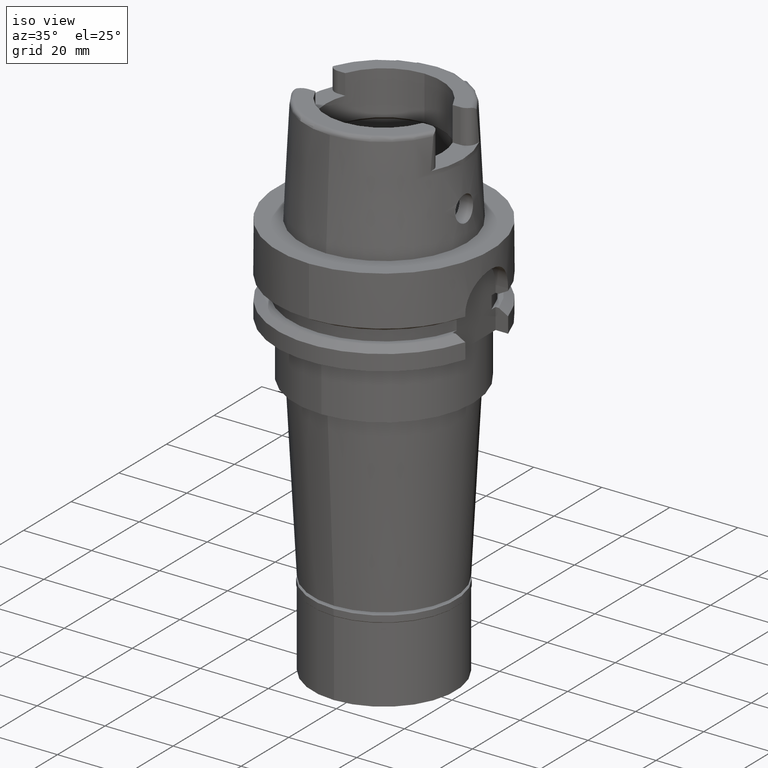
[diagram: clean part render]
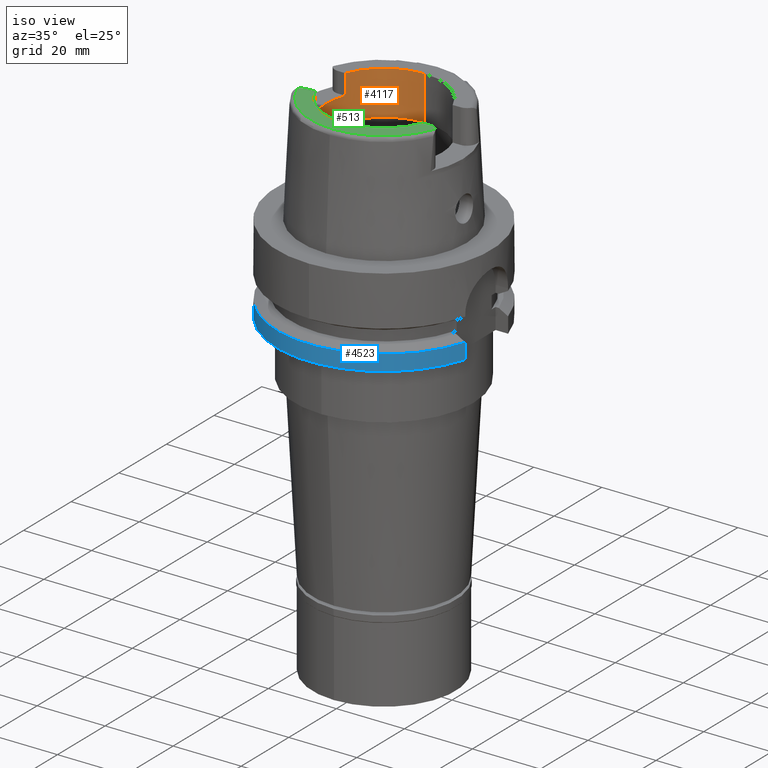
[diagram: same view with three faces highlighted in distinct colors, each labeled with its STEP entity id]
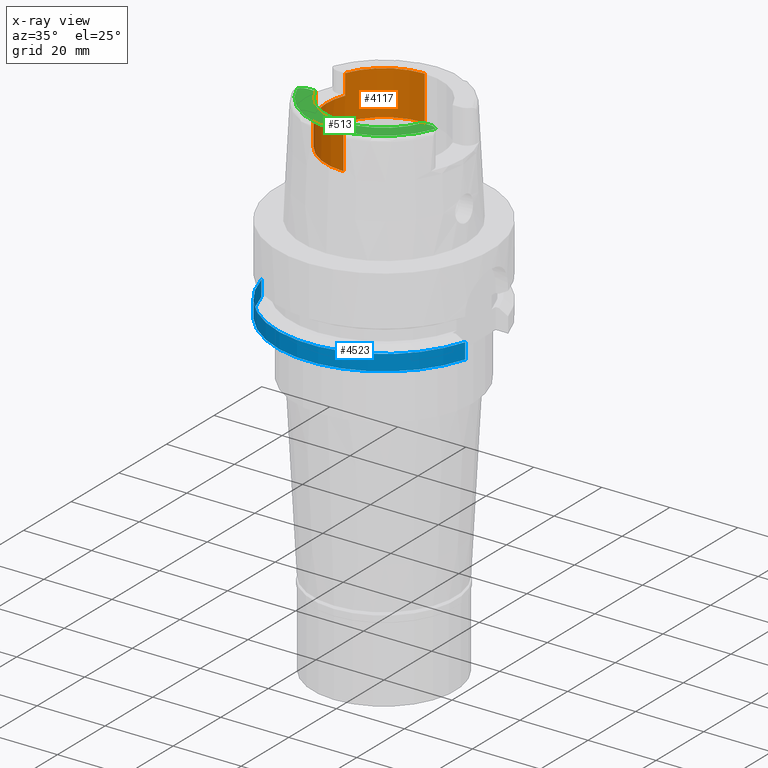
[diagram: x-ray of the same camera — body ghosted, the three highlighted faces saturated]
A machine part, iso view with three faces highlighted in distinct colors.
The next image is the same camera in x-ray (body ghosted, the three faces saturated) — at least one of them is partly hidden behind the body in this view.
Their STEP definitions:

[orange] entity #4117 — the highlighted cylindrical surface (partial cylindrical patch) has radius 17 mm, axis along (0, 0, 1).
#1 = ORIENTED_EDGE ( 'NONE', *, *, #1663, .F. ) ;
#38 = LINE ( 'NONE', #3398, #3618 ) ;
#169 = VERTEX_POINT ( 'NONE', #3105 ) ;
#191 = CARTESIAN_POINT ( 'NONE',  ( 0.0000000000000000000, -17.00000000000000000, 18.99602540378000270 ) ) ;
#219 = FACE_OUTER_BOUND ( 'NONE', #5103, .T. ) ;
#234 = ORIENTED_EDGE ( 'NONE', *, *, #3844, .F. ) ;
#294 = AXIS2_PLACEMENT_3D ( 'NONE', #1438, #3910, #5159 ) ;
#353 = VERTEX_POINT ( 'NONE', #359 ) ;
#359 = CARTESIAN_POINT ( 'NONE',  ( 0.0000000000000000000, -17.00000000000000000, 32.00000000000000000 ) ) ;
#384 = LINE ( 'NONE', #1660, #4491 ) ;
#428 = CARTESIAN_POINT ( 'NONE',  ( -15.80149043602999903, 6.270000000000000462, 32.00000000000000000 ) ) ;
#581 = AXIS2_PLACEMENT_3D ( 'NONE', #5282, #2433, #4111 ) ;
#787 = DIRECTION ( 'NONE',  ( 0.0000000000000000000, 0.0000000000000000000, -1.000000000000000000 ) ) ;
#879 = EDGE_CURVE ( 'NONE', #2804, #1661, #384, .T. ) ;
#1260 = CARTESIAN_POINT ( 'NONE',  ( 0.0000000000000000000, 17.00000000000000000, 32.00000000000000000 ) ) ;
#1409 = CARTESIAN_POINT ( 'NONE',  ( 0.0000000000000000000, 0.0000000000000000000, 18.99602540378000270 ) ) ;
#1438 = CARTESIAN_POINT ( 'NONE',  ( 0.0000000000000000000, 0.0000000000000000000, 26.00000000000000000 ) ) ;
#1447 = DIRECTION ( 'NONE',  ( 0.0000000000000000000, 0.0000000000000000000, 1.000000000000000000 ) ) ;
#1500 = DIRECTION ( 'NONE',  ( -0.9294994374136111848, -0.3688235294118045182, 0.0000000000000000000 ) ) ;
#1564 = EDGE_CURVE ( 'NONE', #3566, #169, #4537, .T. ) ;
#1660 = CARTESIAN_POINT ( 'NONE',  ( 0.0000000000000000000, 17.00000000000000000, 18.99602540378000270 ) ) ;
#1661 = VERTEX_POINT ( 'NONE', #1260 ) ;
#1663 = EDGE_CURVE ( 'NONE', #3162, #4600, #38, .T. ) ;
#1694 = CARTESIAN_POINT ( 'NONE',  ( 0.0000000000000000000, -17.00000000000000000, 18.99602540378000270 ) ) ;
#1861 = LINE ( 'NONE', #191, #3051 ) ;
#2209 = ORIENTED_EDGE ( 'NONE', *, *, #879, .T. ) ;
#2218 = CARTESIAN_POINT ( 'NONE',  ( 0.0000000000000000000, 17.00000000000000000, 18.99602540378000270 ) ) ;
#2433 = DIRECTION ( 'NONE',  ( 0.0000000000000000000, 0.0000000000000000000, 1.000000000000000000 ) ) ;
#2460 = CARTESIAN_POINT ( 'NONE',  ( -15.80149043602999903, -6.270000000000000462, 32.00000000000000000 ) ) ;
#2472 = VECTOR ( 'NONE', #787, 1000.000000000000000 ) ;
#2485 = DIRECTION ( 'NONE',  ( 0.0000000000000000000, 1.000000000000000000, 0.0000000000000000000 ) ) ;
#2560 = EDGE_CURVE ( 'NONE', #1661, #4600, #3820, .T. ) ;
#2675 = DIRECTION ( 'NONE',  ( 0.0000000000000000000, 0.0000000000000000000, -1.000000000000000000 ) ) ;
#2732 = DIRECTION ( 'NONE',  ( 0.0000000000000000000, -1.000000000000000000, 0.0000000000000000000 ) ) ;
#2780 = CARTESIAN_POINT ( 'NONE',  ( -15.80149043602999903, -6.270000000000000462, 32.00000000000000000 ) ) ;
#2804 = VERTEX_POINT ( 'NONE', #2218 ) ;
#2953 = DIRECTION ( 'NONE',  ( 0.0000000000000000000, 0.0000000000000000000, 1.000000000000000000 ) ) ;
#3005 = AXIS2_PLACEMENT_3D ( 'NONE', #1409, #2675, #2732 ) ;
#3027 = EDGE_CURVE ( 'NONE', #3162, #169, #4436, .T. ) ;
#3051 = VECTOR ( 'NONE', #4722, 1000.000000000000000 ) ;
#3105 = CARTESIAN_POINT ( 'NONE',  ( -15.80149043602999903, -6.270000000000000462, 26.00000000000000000 ) ) ;
#3162 = VERTEX_POINT ( 'NONE', #3815 ) ;
#3182 = ORIENTED_EDGE ( 'NONE', *, *, #1564, .F. ) ;
#3332 = DIRECTION ( 'NONE',  ( 0.0000000000000000000, -7.376457760500000442E-14, 1.000000000000000000 ) ) ;
#3371 = DIRECTION ( 'NONE',  ( 0.0000000000000000000, 0.0000000000000000000, 1.000000000000000000 ) ) ;
#3398 = CARTESIAN_POINT ( 'NONE',  ( -15.80149043602999903, 6.270000000000000462, 26.00000000000000000 ) ) ;
#3566 = VERTEX_POINT ( 'NONE', #2460 ) ;
#3587 = CYLINDRICAL_SURFACE ( 'NONE', #581, 17.00000000000000000 ) ;
#3618 = VECTOR ( 'NONE', #3371, 1000.000000000000000 ) ;
#3793 = CIRCLE ( 'NONE', #3005, 17.00000000000000000 ) ;
#3815 = CARTESIAN_POINT ( 'NONE',  ( -15.80149043602999903, 6.270000000000000462, 26.00000000000000000 ) ) ;
#3820 = CIRCLE ( 'NONE', #4167, 17.00000000000000000 ) ;
#3829 = VERTEX_POINT ( 'NONE', #1694 ) ;
#3844 = EDGE_CURVE ( 'NONE', #3829, #353, #1861, .T. ) ;
#3910 = DIRECTION ( 'NONE',  ( 0.0000000000000000000, 0.0000000000000000000, 1.000000000000000000 ) ) ;
#3962 = ORIENTED_EDGE ( 'NONE', *, *, #2560, .T. ) ;
#4111 = DIRECTION ( 'NONE',  ( 0.0000000000000000000, 1.000000000000000000, 0.0000000000000000000 ) ) ;
#4117 = ADVANCED_FACE ( 'NONE', ( #219 ), #3587, .F. ) ;
#4167 = AXIS2_PLACEMENT_3D ( 'NONE', #5088, #2953, #2485 ) ;
#4186 = CIRCLE ( 'NONE', #4546, 17.00000000000000000 ) ;
#4436 = CIRCLE ( 'NONE', #294, 17.00000000000000000 ) ;
#4491 = VECTOR ( 'NONE', #3332, 1000.000000000000000 ) ;
#4537 = LINE ( 'NONE', #2780, #2472 ) ;
#4546 = AXIS2_PLACEMENT_3D ( 'NONE', #5223, #1447, #1500 ) ;
#4600 = VERTEX_POINT ( 'NONE', #428 ) ;
#4700 = ORIENTED_EDGE ( 'NONE', *, *, #5372, .T. ) ;
#4722 = DIRECTION ( 'NONE',  ( 0.0000000000000000000, 7.376457760500000442E-14, 1.000000000000000000 ) ) ;
#5031 = ORIENTED_EDGE ( 'NONE', *, *, #3027, .T. ) ;
#5088 = CARTESIAN_POINT ( 'NONE',  ( 0.0000000000000000000, 0.0000000000000000000, 32.00000000000000000 ) ) ;
#5091 = EDGE_CURVE ( 'NONE', #3566, #353, #4186, .T. ) ;
#5103 = EDGE_LOOP ( 'NONE', ( #3182, #5411, #234, #4700, #2209, #3962, #1, #5031 ) ) ;
#5159 = DIRECTION ( 'NONE',  ( -0.9294994374136111848, 0.3688235294118045182, 0.0000000000000000000 ) ) ;
#5223 = CARTESIAN_POINT ( 'NONE',  ( 0.0000000000000000000, 0.0000000000000000000, 32.00000000000000000 ) ) ;
#5282 = CARTESIAN_POINT ( 'NONE',  ( 0.0000000000000000000, 0.0000000000000000000, 0.0000000000000000000 ) ) ;
#5372 = EDGE_CURVE ( 'NONE', #3829, #2804, #3793, .T. ) ;
#5411 = ORIENTED_EDGE ( 'NONE', *, *, #5091, .T. ) ;

[blue] entity #4523 — the highlighted cylindrical surface (partial cylindrical patch) has radius 31.5 mm, axis along (0, 0, 1).
#62 = CARTESIAN_POINT ( 'NONE',  ( 30.18691769625000276, -9.000000000000000000, -26.00000000000000000 ) ) ;
#162 = AXIS2_PLACEMENT_3D ( 'NONE', #5161, #3088, #2268 ) ;
#220 = DIRECTION ( 'NONE',  ( 2.693550813345969813E-08, -1.025814775365988069E-07, 0.9999999999999943379 ) ) ;
#556 = CARTESIAN_POINT ( 'NONE',  ( -30.46719547316000032, -8.000000000000000000, -26.00000000000000000 ) ) ;
#618 = AXIS2_PLACEMENT_3D ( 'NONE', #3288, #3236, #2017 ) ;
#743 = CYLINDRICAL_SURFACE ( 'NONE', #4974, 31.50000000000000000 ) ;
#920 = ORIENTED_EDGE ( 'NONE', *, *, #2004, .F. ) ;
#995 = ORIENTED_EDGE ( 'NONE', *, *, #5019, .F. ) ;
#1056 = CIRCLE ( 'NONE', #162, 31.50000000000000000 ) ;
#1425 = EDGE_CURVE ( 'NONE', #2427, #3856, #2552, .T. ) ;
#1662 = DIRECTION ( 'NONE',  ( -9.382967346774982331E-09, -3.147114050930997519E-08, -0.9999999999999994449 ) ) ;
#1690 = VERTEX_POINT ( 'NONE', #62 ) ;
#1710 = VECTOR ( 'NONE', #1662, 1000.000000000000114 ) ;
#2004 = EDGE_CURVE ( 'NONE', #2427, #1690, #3751, .T. ) ;
#2014 = EDGE_LOOP ( 'NONE', ( #995, #2488, #920, #2118 ) ) ;
#2017 = DIRECTION ( 'NONE',  ( 0.9583148474999051425, -0.2857142857143015191, 0.0000000000000000000 ) ) ;
#2029 = CARTESIAN_POINT ( 'NONE',  ( -30.46719547316000032, -8.000000000000000000, -26.00000000000000000 ) ) ;
#2118 = ORIENTED_EDGE ( 'NONE', *, *, #1425, .T. ) ;
#2268 = DIRECTION ( 'NONE',  ( 0.0000000000000000000, -1.000000000000000000, 0.0000000000000000000 ) ) ;
#2427 = VERTEX_POINT ( 'NONE', #2882 ) ;
#2488 = ORIENTED_EDGE ( 'NONE', *, *, #5408, .T. ) ;
#2552 = CIRCLE ( 'NONE', #618, 31.49999999999999645 ) ;
#2654 = CARTESIAN_POINT ( 'NONE',  ( -30.46719534865000156, -8.000000474182998644, -21.37750337949999846 ) ) ;
#2882 = CARTESIAN_POINT ( 'NONE',  ( 30.18691769625000276, -9.000000000000000000, -21.37749907476000288 ) ) ;
#3088 = DIRECTION ( 'NONE',  ( 0.0000000000000000000, 0.0000000000000000000, 1.000000000000000000 ) ) ;
#3236 = DIRECTION ( 'NONE',  ( 0.0000000000000000000, 0.0000000000000000000, -1.000000000000000000 ) ) ;
#3288 = CARTESIAN_POINT ( 'NONE',  ( 0.0000000000000000000, 0.0000000000000000000, -21.37749907476000288 ) ) ;
#3543 = VECTOR ( 'NONE', #220, 1000.000000000000114 ) ;
#3606 = DIRECTION ( 'NONE',  ( 0.0000000000000000000, 1.000000000000000000, 0.0000000000000000000 ) ) ;
#3684 = DIRECTION ( 'NONE',  ( 0.0000000000000000000, 0.0000000000000000000, 1.000000000000000000 ) ) ;
#3751 = LINE ( 'NONE', #5442, #1710 ) ;
#3856 = VERTEX_POINT ( 'NONE', #2654 ) ;
#4417 = LINE ( 'NONE', #556, #3543 ) ;
#4523 = ADVANCED_FACE ( 'NONE', ( #5276 ), #743, .T. ) ;
#4974 = AXIS2_PLACEMENT_3D ( 'NONE', #5354, #3684, #3606 ) ;
#5019 = EDGE_CURVE ( 'NONE', #5172, #3856, #4417, .T. ) ;
#5161 = CARTESIAN_POINT ( 'NONE',  ( 0.0000000000000000000, 0.0000000000000000000, -26.00000000000000000 ) ) ;
#5172 = VERTEX_POINT ( 'NONE', #2029 ) ;
#5276 = FACE_OUTER_BOUND ( 'NONE', #2014, .T. ) ;
#5354 = CARTESIAN_POINT ( 'NONE',  ( 0.0000000000000000000, 0.0000000000000000000, 0.0000000000000000000 ) ) ;
#5408 = EDGE_CURVE ( 'NONE', #5172, #1690, #1056, .T. ) ;
#5442 = CARTESIAN_POINT ( 'NONE',  ( 30.18691773962000013, -8.999999854524000753, -21.37749790141000261 ) ) ;

[green] entity #513 — the highlighted planar face has unit normal (0, 0, 1).
#24 = DIRECTION ( 'NONE',  ( 0.0000000000000000000, 0.0000000000000000000, 1.000000000000000000 ) ) ;
#74 = EDGE_LOOP ( 'NONE', ( #2279, #344, #4463, #1578, #1035, #3315, #3868 ) ) ;
#344 = ORIENTED_EDGE ( 'NONE', *, *, #2671, .F. ) ;
#353 = VERTEX_POINT ( 'NONE', #359 ) ;
#359 = CARTESIAN_POINT ( 'NONE',  ( 0.0000000000000000000, -17.00000000000000000, 32.00000000000000000 ) ) ;
#481 = AXIS2_PLACEMENT_3D ( 'NONE', #2688, #2747, #4423 ) ;
#513 = ADVANCED_FACE ( 'NONE', ( #4362 ), #4723, .T. ) ;
#560 = AXIS2_PLACEMENT_3D ( 'NONE', #776, #2820, #1083 ) ;
#614 = VERTEX_POINT ( 'NONE', #2194 ) ;
#776 = CARTESIAN_POINT ( 'NONE',  ( 0.0000000000000000000, 0.0000000000000000000, 32.00000000000000000 ) ) ;
#928 = VERTEX_POINT ( 'NONE', #3060 ) ;
#1035 = ORIENTED_EDGE ( 'NONE', *, *, #5091, .F. ) ;
#1083 = DIRECTION ( 'NONE',  ( 0.9401236264118068009, -0.3408336354621024911, 0.0000000000000000000 ) ) ;
#1190 = LINE ( 'NONE', #1623, #2217 ) ;
#1365 = AXIS2_PLACEMENT_3D ( 'NONE', #5017, #24, #2920 ) ;
#1380 = VERTEX_POINT ( 'NONE', #2692 ) ;
#1447 = DIRECTION ( 'NONE',  ( 0.0000000000000000000, 0.0000000000000000000, 1.000000000000000000 ) ) ;
#1500 = DIRECTION ( 'NONE',  ( -0.9294994374136111848, -0.3688235294118045182, 0.0000000000000000000 ) ) ;
#1508 = DIRECTION ( 'NONE',  ( -1.000000000000000000, 8.644330667353000255E-14, 0.0000000000000000000 ) ) ;
#1578 = ORIENTED_EDGE ( 'NONE', *, *, #4349, .F. ) ;
#1599 = EDGE_CURVE ( 'NONE', #3566, #928, #3699, .T. ) ;
#1623 = CARTESIAN_POINT ( 'NONE',  ( 18.07000000000000028, -6.270000000000000462, 32.00000000000000000 ) ) ;
#1863 = DIRECTION ( 'NONE',  ( 1.000000000000000000, 0.0000000000000000000, 0.0000000000000000000 ) ) ;
#2081 = CARTESIAN_POINT ( 'NONE',  ( -20.26871835884000106, -7.388795116668999796, 32.00000000000000000 ) ) ;
#2194 = CARTESIAN_POINT ( 'NONE',  ( 20.28174256341000259, -7.352969181062000814, 32.00000000000000000 ) ) ;
#2217 = VECTOR ( 'NONE', #2962, 1000.000000000000000 ) ;
#2227 = VERTEX_POINT ( 'NONE', #4809 ) ;
#2258 = AXIS2_PLACEMENT_3D ( 'NONE', #2716, #2684, #1863 ) ;
#2279 = ORIENTED_EDGE ( 'NONE', *, *, #4210, .F. ) ;
#2311 = EDGE_CURVE ( 'NONE', #2966, #928, #2501, .T. ) ;
#2460 = CARTESIAN_POINT ( 'NONE',  ( -15.80149043602999903, -6.270000000000000462, 32.00000000000000000 ) ) ;
#2501 = CIRCLE ( 'NONE', #481, 2.880000000000003446 ) ;
#2671 = EDGE_CURVE ( 'NONE', #2227, #614, #4339, .T. ) ;
#2684 = DIRECTION ( 'NONE',  ( 0.0000000000000000000, 0.0000000000000000000, 1.000000000000000000 ) ) ;
#2688 = CARTESIAN_POINT ( 'NONE',  ( -17.98999999999999844, -9.150000000000000355, 32.00000000000000000 ) ) ;
#2692 = CARTESIAN_POINT ( 'NONE',  ( 15.80149043602999903, -6.270000000000000462, 32.00000000000000000 ) ) ;
#2716 = CARTESIAN_POINT ( 'NONE',  ( 0.0000000000000000000, 0.0000000000000000000, 32.00000000000000000 ) ) ;
#2747 = DIRECTION ( 'NONE',  ( 0.0000000000000000000, 0.0000000000000000000, -1.000000000000000000 ) ) ;
#2820 = DIRECTION ( 'NONE',  ( 0.0000000000000000000, 0.0000000000000000000, -1.000000000000000000 ) ) ;
#2920 = DIRECTION ( 'NONE',  ( 0.0000000000000000000, -1.000000000000000000, 0.0000000000000000000 ) ) ;
#2962 = DIRECTION ( 'NONE',  ( -1.000000000000000000, -8.496094534321999950E-14, 0.0000000000000000000 ) ) ;
#2966 = VERTEX_POINT ( 'NONE', #2081 ) ;
#2979 = DIRECTION ( 'NONE',  ( 0.0000000000000000000, 1.000000000000000000, 0.0000000000000000000 ) ) ;
#3060 = CARTESIAN_POINT ( 'NONE',  ( -17.98999999999999844, -6.270000000000000462, 32.00000000000000000 ) ) ;
#3174 = VECTOR ( 'NONE', #1508, 1000.000000000000000 ) ;
#3315 = ORIENTED_EDGE ( 'NONE', *, *, #1599, .T. ) ;
#3378 = CIRCLE ( 'NONE', #560, 21.57348458609000375 ) ;
#3566 = VERTEX_POINT ( 'NONE', #2460 ) ;
#3699 = LINE ( 'NONE', #4979, #3174 ) ;
#3723 = DIRECTION ( 'NONE',  ( 0.0000000000000000000, 0.0000000000000000000, -1.000000000000000000 ) ) ;
#3730 = CIRCLE ( 'NONE', #1365, 17.00000000000000000 ) ;
#3807 = AXIS2_PLACEMENT_3D ( 'NONE', #4165, #3723, #2979 ) ;
#3868 = ORIENTED_EDGE ( 'NONE', *, *, #2311, .F. ) ;
#4165 = CARTESIAN_POINT ( 'NONE',  ( 18.07000000000000028, -9.070000000000000284, 32.00000000000000000 ) ) ;
#4186 = CIRCLE ( 'NONE', #4546, 17.00000000000000000 ) ;
#4210 = EDGE_CURVE ( 'NONE', #614, #2966, #3378, .T. ) ;
#4339 = CIRCLE ( 'NONE', #3807, 2.800000000000000266 ) ;
#4349 = EDGE_CURVE ( 'NONE', #353, #1380, #3730, .T. ) ;
#4362 = FACE_OUTER_BOUND ( 'NONE', #74, .T. ) ;
#4423 = DIRECTION ( 'NONE',  ( -0.7912216523763718756, 0.6115294733786784676, 0.0000000000000000000 ) ) ;
#4463 = ORIENTED_EDGE ( 'NONE', *, *, #4823, .T. ) ;
#4546 = AXIS2_PLACEMENT_3D ( 'NONE', #5223, #1447, #1500 ) ;
#4723 = PLANE ( 'NONE',  #2258 ) ;
#4809 = CARTESIAN_POINT ( 'NONE',  ( 18.07000000000000028, -6.270000000000000462, 32.00000000000000000 ) ) ;
#4823 = EDGE_CURVE ( 'NONE', #2227, #1380, #1190, .T. ) ;
#4979 = CARTESIAN_POINT ( 'NONE',  ( -15.80149043602999903, -6.270000000000000462, 32.00000000000000000 ) ) ;
#5017 = CARTESIAN_POINT ( 'NONE',  ( 0.0000000000000000000, 0.0000000000000000000, 32.00000000000000000 ) ) ;
#5091 = EDGE_CURVE ( 'NONE', #3566, #353, #4186, .T. ) ;
#5223 = CARTESIAN_POINT ( 'NONE',  ( 0.0000000000000000000, 0.0000000000000000000, 32.00000000000000000 ) ) ;